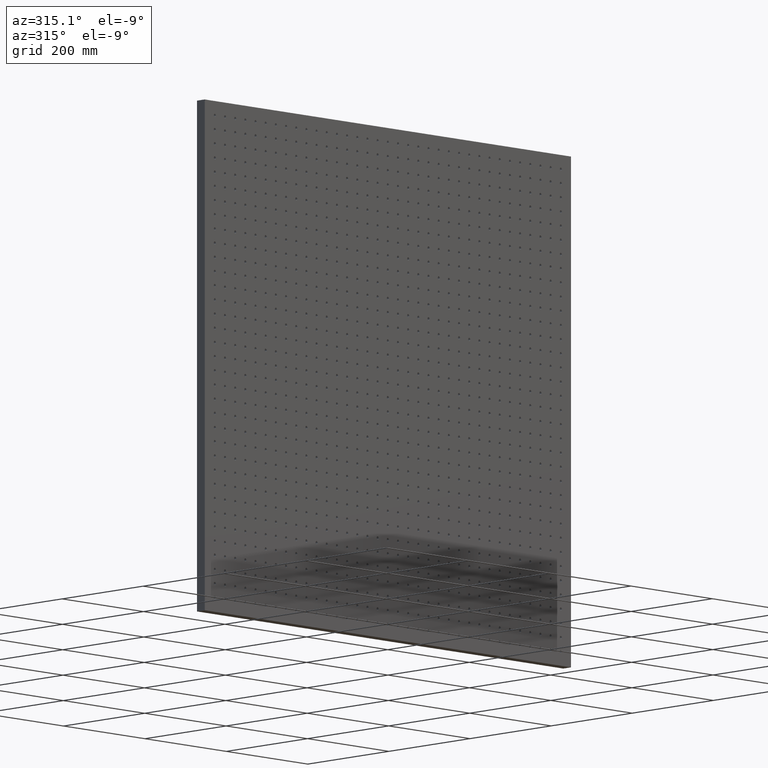
[diagram: clean part render]
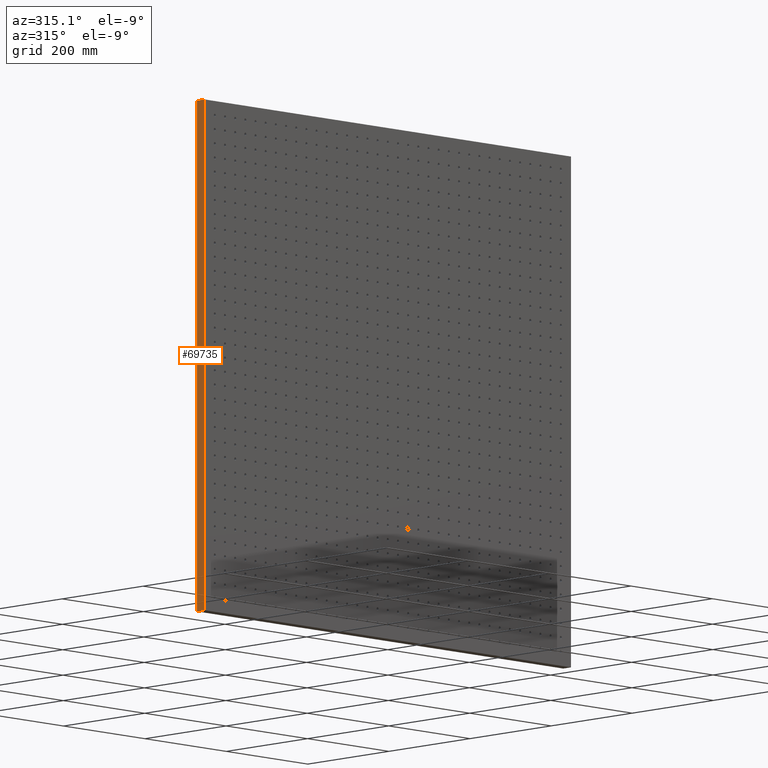
[diagram: same view with one face highlighted and labeled with its STEP entity id]
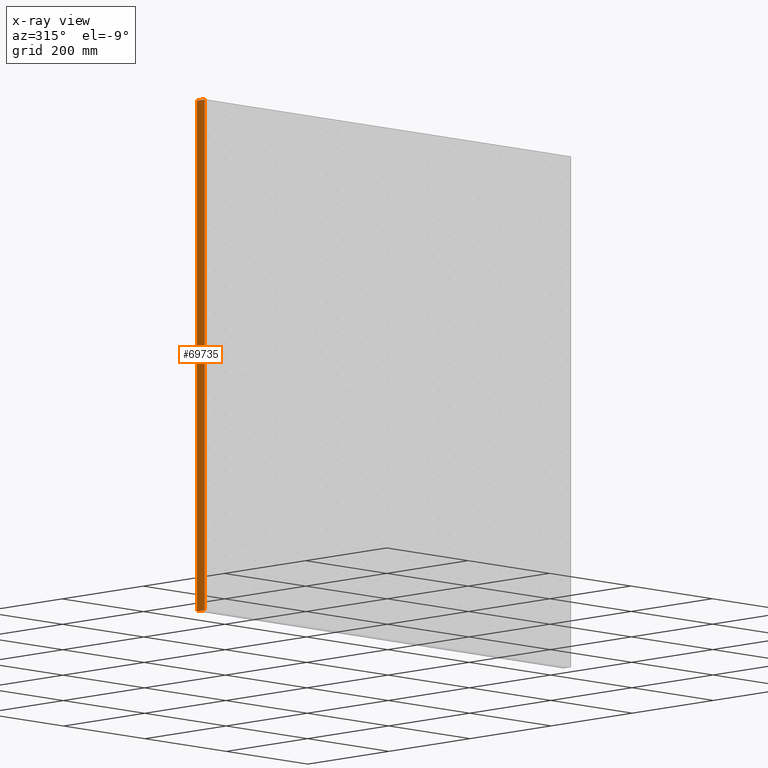
[diagram: x-ray of the same camera — body ghosted, the highlighted face saturated]
A machine part, auxiliary view. The second image highlights one B-rep face of the part: STEP entity #69735.
The next image is the same camera in x-ray: the body ghosted, the highlighted face saturated — about 0% of this face is hidden behind the body in this view.
In plain terms, the highlighted planar face has unit normal (1, 0, -0).
Its self-contained STEP definition (entity closure, byte-faithful):
#1330 = DIRECTION ( 'NONE',  ( 1.233581138472396211E-16, 0.000000000000000000, 1.000000000000000000 ) ) ;
#2205 = CARTESIAN_POINT ( 'NONE',  ( -450.0000000000000000, 19.00000000000000000, -449.9999999999999432 ) ) ;
#2206 = DIRECTION ( 'NONE',  ( 1.000000000000000000, 0.000000000000000000, -1.233581138472396211E-16 ) ) ;
#3464 = ORIENTED_EDGE ( 'NONE', *, *, #77896, .T. ) ;
#4788 = LINE ( 'NONE', #16749, #51038 ) ;
#8159 = AXIS2_PLACEMENT_3D ( 'NONE', #37497, #2206, #65518 ) ;
#9441 = VECTOR ( 'NONE', #23220, 1000.000000000000000 ) ;
#11269 = LINE ( 'NONE', #59445, #29794 ) ;
#12285 = EDGE_CURVE ( 'NONE', #20718, #72250, #71543, .T. ) ;
#16749 = CARTESIAN_POINT ( 'NONE',  ( -450.0000000000000000, 19.00000000000000000, -449.9999999999999432 ) ) ;
#20718 = VERTEX_POINT ( 'NONE', #59752 ) ;
#21509 = FACE_OUTER_BOUND ( 'NONE', #57558, .T. ) ;
#23220 = DIRECTION ( 'NONE',  ( -0.000000000000000000, -1.000000000000000000, -0.000000000000000000 ) ) ;
#24418 = ORIENTED_EDGE ( 'NONE', *, *, #32193, .T. ) ;
#28556 = EDGE_CURVE ( 'NONE', #72250, #36888, #50756, .T. ) ;
#29794 = VECTOR ( 'NONE', #74155, 1000.000000000000000 ) ;
#30129 = VERTEX_POINT ( 'NONE', #77016 ) ;
#32193 = EDGE_CURVE ( 'NONE', #20718, #30129, #4788, .T. ) ;
#36888 = VERTEX_POINT ( 'NONE', #53311 ) ;
#37497 = CARTESIAN_POINT ( 'NONE',  ( -450.0000000000000000, 19.00000000000000000, -449.9999999999999432 ) ) ;
#45251 = ORIENTED_EDGE ( 'NONE', *, *, #28556, .F. ) ;
#50756 = LINE ( 'NONE', #58094, #9441 ) ;
#51038 = VECTOR ( 'NONE', #58511, 1000.000000000000000 ) ;
#52780 = VECTOR ( 'NONE', #1330, 1000.000000000000000 ) ;
#53311 = CARTESIAN_POINT ( 'NONE',  ( -449.9999999999998863, 0.000000000000000000, 450.0000000000000000 ) ) ;
#55686 = ORIENTED_EDGE ( 'NONE', *, *, #12285, .F. ) ;
#57558 = EDGE_LOOP ( 'NONE', ( #3464, #45251, #55686, #24418 ) ) ;
#58094 = CARTESIAN_POINT ( 'NONE',  ( -449.9999999999998863, 19.00000000000000000, 450.0000000000000000 ) ) ;
#58511 = DIRECTION ( 'NONE',  ( -0.000000000000000000, -1.000000000000000000, -0.000000000000000000 ) ) ;
#59445 = CARTESIAN_POINT ( 'NONE',  ( -450.0000000000000000, 0.000000000000000000, -449.9999999999999432 ) ) ;
#59752 = CARTESIAN_POINT ( 'NONE',  ( -450.0000000000000000, 19.00000000000000000, -449.9999999999999432 ) ) ;
#60245 = CARTESIAN_POINT ( 'NONE',  ( -449.9999999999998863, 19.00000000000000000, 450.0000000000000000 ) ) ;
#65518 = DIRECTION ( 'NONE',  ( -1.233581138472396211E-16, 0.000000000000000000, -1.000000000000000000 ) ) ;
#69735 = ADVANCED_FACE ( 'NONE', ( #21509 ), #87547, .F. ) ;
#71543 = LINE ( 'NONE', #2205, #52780 ) ;
#72250 = VERTEX_POINT ( 'NONE', #60245 ) ;
#74155 = DIRECTION ( 'NONE',  ( 1.233581138472396211E-16, 0.000000000000000000, 1.000000000000000000 ) ) ;
#77016 = CARTESIAN_POINT ( 'NONE',  ( -450.0000000000000000, 0.000000000000000000, -449.9999999999999432 ) ) ;
#77896 = EDGE_CURVE ( 'NONE', #30129, #36888, #11269, .T. ) ;
#87547 = PLANE ( 'NONE',  #8159 ) ;